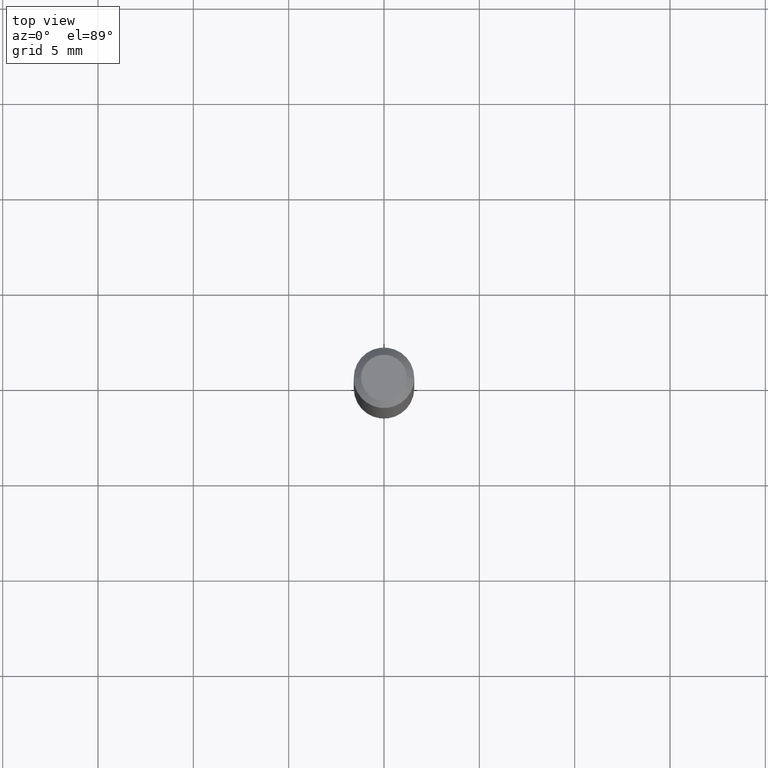
[diagram: clean part render]
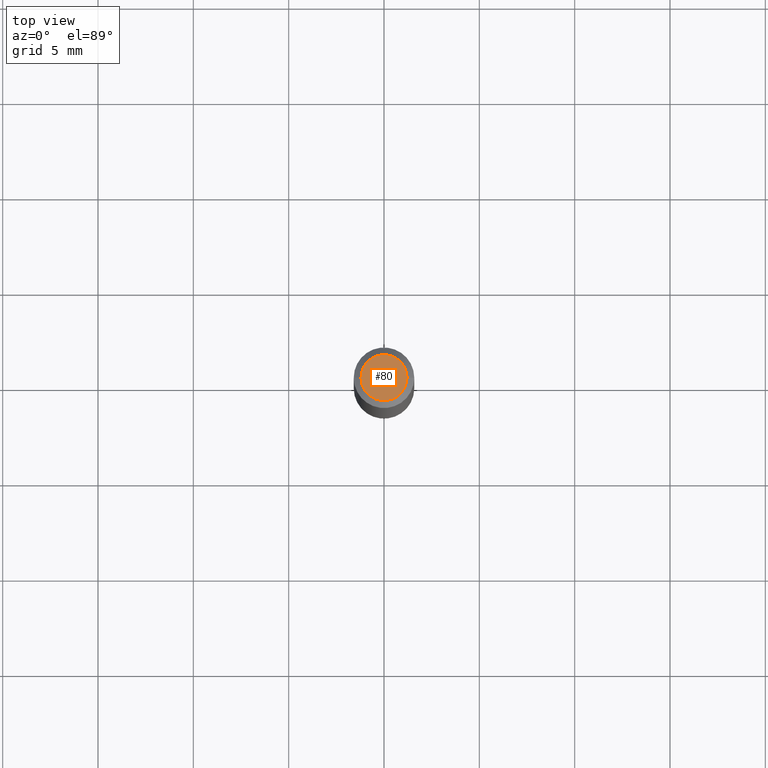
[diagram: same view with one face highlighted and labeled with its STEP entity id]
A machine part, top view. The second image highlights one B-rep face of the part: STEP entity #80.
In plain terms, the highlighted planar face has unit normal (0, -0, -1).
Its self-contained STEP definition (entity closure, byte-faithful):
#14 = DIRECTION ( 'NONE',  ( 2.438088387897960049E-29, -3.491481338843145188E-15, -1.000000000000000000 ) ) ;
#17 = EDGE_CURVE ( 'NONE', #189, #383, #214, .T. ) ;
#25 = EDGE_CURVE ( 'NONE', #383, #189, #335, .T. ) ;
#78 = DIRECTION ( 'NONE',  ( 1.000000000000000000, -6.982962677686267499E-15, 4.852736867747366768E-29 ) ) ;
#80 = ADVANCED_FACE ( 'NONE', ( #200 ), #227, .F. ) ;
#127 = CARTESIAN_POINT ( 'NONE',  ( -1.505681066337554235E-44, 2.149713515899588158E-30, 6.157024217726067260E-16 ) ) ;
#189 = VERTEX_POINT ( 'NONE', #413 ) ;
#195 = EDGE_LOOP ( 'NONE', ( #318, #402 ) ) ;
#200 = FACE_OUTER_BOUND ( 'NONE', #195, .T. ) ;
#213 = CARTESIAN_POINT ( 'NONE',  ( -0.04749999999999999362, 3.578768372314221353E-16, 6.157024217726043594E-16 ) ) ;
#214 = CIRCLE ( 'NONE', #275, 0.04749999999999999362 ) ;
#227 = PLANE ( 'NONE',  #391 ) ;
#256 = DIRECTION ( 'NONE',  ( -2.445468806185136597E-29, 3.491481338843145583E-15, 1.000000000000000000 ) ) ;
#275 = AXIS2_PLACEMENT_3D ( 'NONE', #445, #404, #293 ) ;
#293 = DIRECTION ( 'NONE',  ( 1.000000000000000000, -6.982962677686267499E-15, 4.852736867747366768E-29 ) ) ;
#318 = ORIENTED_EDGE ( 'NONE', *, *, #25, .T. ) ;
#335 = CIRCLE ( 'NONE', #397, 0.04749999999999999362 ) ;
#338 = CARTESIAN_POINT ( 'NONE',  ( 3.316907271900976096E-16, 0.04749999999999999362, 1.420058472912539912E-16 ) ) ;
#379 = DIRECTION ( 'NONE',  ( -1.000000000000000000, 6.982962677686265922E-15, -4.876176775795935793E-29 ) ) ;
#383 = VERTEX_POINT ( 'NONE', #213 ) ;
#391 = AXIS2_PLACEMENT_3D ( 'NONE', #338, #14, #379 ) ;
#397 = AXIS2_PLACEMENT_3D ( 'NONE', #127, #256, #78 ) ;
#402 = ORIENTED_EDGE ( 'NONE', *, *, #17, .T. ) ;
#404 = DIRECTION ( 'NONE',  ( -2.445468806185136597E-29, 3.491481338843145583E-15, 1.000000000000000000 ) ) ;
#413 = CARTESIAN_POINT ( 'NONE',  ( 0.04749999999999999362, -4.035134999187568269E-16, 6.157024217726092898E-16 ) ) ;
#445 = CARTESIAN_POINT ( 'NONE',  ( -1.505681066337554235E-44, 2.149713515899588158E-30, 6.157024217726067260E-16 ) ) ;